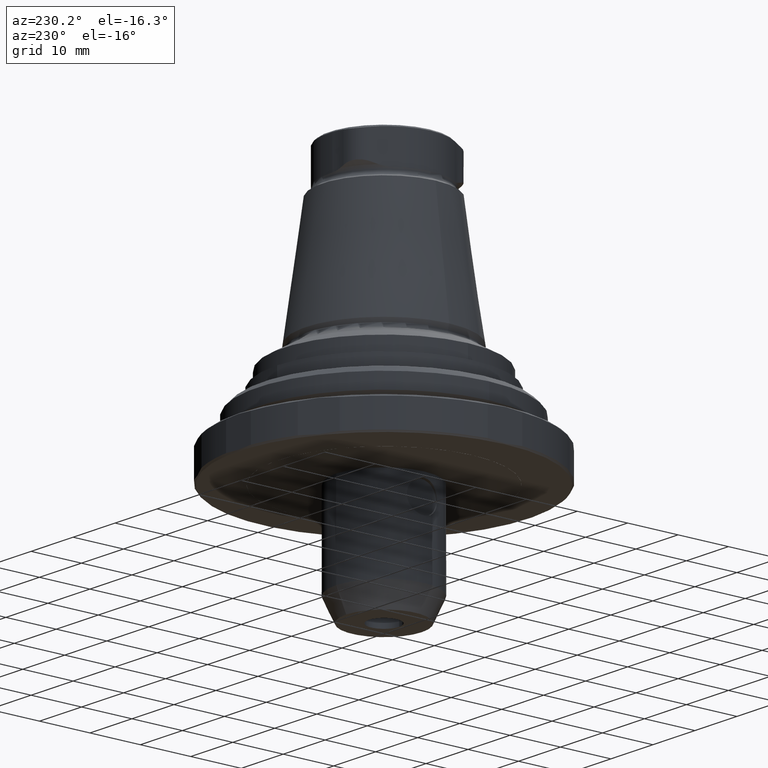
[diagram: clean part render]
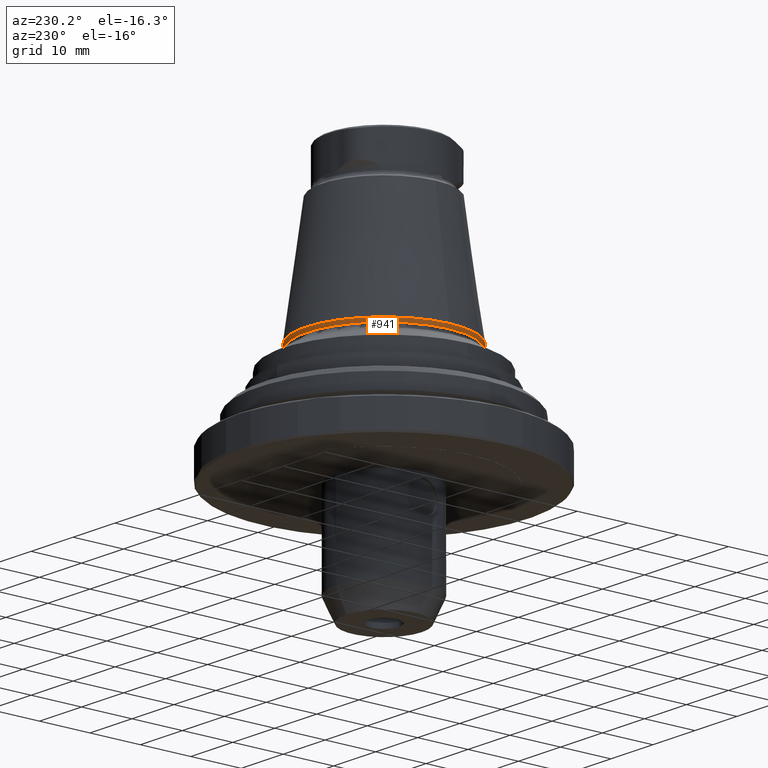
[diagram: same view with one face highlighted and labeled with its STEP entity id]
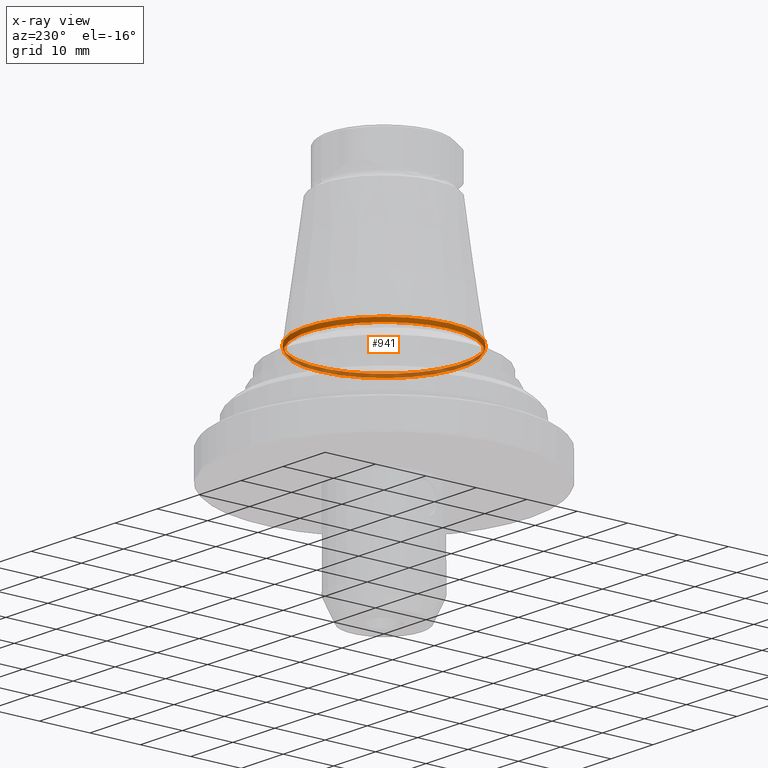
[diagram: x-ray of the same camera — body ghosted, the highlighted face saturated]
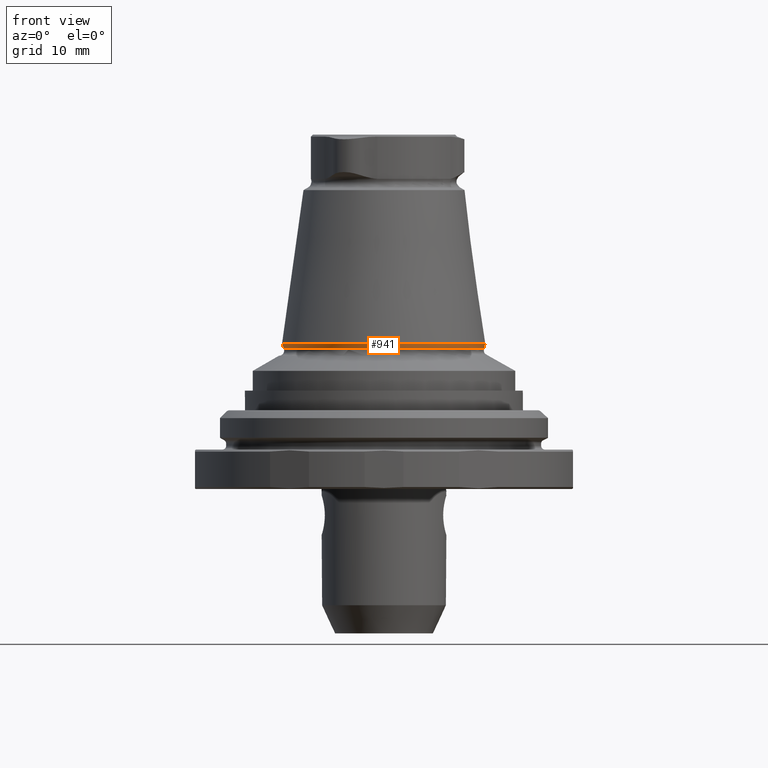
[diagram: same view with one face highlighted and labeled with its STEP entity id]
A machine part, auxiliary view. The second image highlights one B-rep face of the part: STEP entity #941.
The next image is the same camera in x-ray: the body ghosted, the highlighted face saturated — about 42% of this face is hidden behind the body in this view.
A second angle (front view) of the same face is appended — the face is thin or edge-on in the first view.
In plain terms, the highlighted conical surface has half-angle 20 deg.
Its self-contained STEP definition (entity closure, byte-faithful):
#34=CONICAL_SURFACE('',#1040,15.2632459033713,0.349065850398867);
#133=CIRCLE('',#1039,15.5400379337869);
#134=CIRCLE('',#1041,15.2632459033713);
#280=ORIENTED_EDGE('',*,*,#482,.T.);
#281=ORIENTED_EDGE('',*,*,#483,.F.);
#482=EDGE_CURVE('',#591,#591,#133,.T.);
#483=EDGE_CURVE('',#592,#592,#134,.T.);
#591=VERTEX_POINT('',#1619);
#592=VERTEX_POINT('',#1622);
#720=EDGE_LOOP('',(#280));
#721=EDGE_LOOP('',(#281));
#820=FACE_BOUND('',#720,.T.);
#821=FACE_BOUND('',#721,.T.);
#941=ADVANCED_FACE('',(#820,#821),#34,.T.);
#1039=AXIS2_PLACEMENT_3D('',#1618,#1219,#1220);
#1040=AXIS2_PLACEMENT_3D('',#1620,#1221,#1222);
#1041=AXIS2_PLACEMENT_3D('',#1621,#1223,#1224);
#1219=DIRECTION('',(1.27319154200133E-16,-7.79579225983867E-33,-1.));
#1220=DIRECTION('',(-1.,6.12303176911189E-17,-1.27319154200133E-16));
#1221=DIRECTION('',(-1.27319154200133E-16,7.79579225983867E-33,1.));
#1222=DIRECTION('',(1.,-6.12303176911189E-17,1.27319154200133E-16));
#1223=DIRECTION('',(1.27319154200133E-16,-7.79579225983867E-33,-1.));
#1224=DIRECTION('',(-1.,6.12303176911189E-17,-1.27319154200133E-16));
#1618=CARTESIAN_POINT('',(4.12079965727843E-15,-2.52317872156612E-31,15.1381657247255));
#1619=CARTESIAN_POINT('',(-15.5400379337869,9.51521459617813E-16,15.1381657247255));
#1620=CARTESIAN_POINT('',(4.21762330900619E-15,-2.58246415111917E-31,14.3776858712734));
#1621=CARTESIAN_POINT('',(4.21762330900619E-15,-2.58246415111917E-31,14.3776858712734));
#1622=CARTESIAN_POINT('',(-15.2632459033713,9.34573395661092E-16,14.3776858712734));